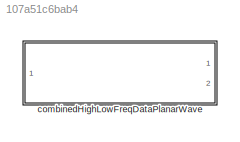
MODEL slx_107a51c6bab4
KIND library
CONFIG AbsTol = auto
CONFIG EnableMultiTasking = off
CONFIG FixedStep = auto
CONFIG MaxStep = auto
CONFIG MinStep = auto
CONFIG RelTol = 1e-3
CONFIG SampleTimeConstraint = Unconstrained
CONFIG Solver = VariableStepAuto
CONFIG SolverName = VariableStepAuto
CONFIG StartTime = 0.0
CONFIG StopTime = 10.0
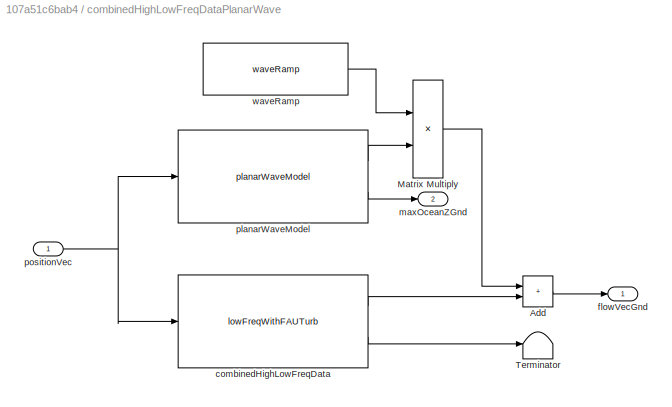
BLOCK [SubSystem] combinedHighLowFreqDataPlanarWave
  Ports = [1, 2]
  RequestExecContextInheritance = off
BLOCK [Sum] combinedHighLowFreqDataPlanarWave/Add
  IconShape = rectangular
  Ports = [2, 1]
BLOCK [Product] combinedHighLowFreqDataPlanarWave/Matrix Multiply
  Ports = [2, 1]
BLOCK [Terminator] combinedHighLowFreqDataPlanarWave/Terminator
BLOCK [Reference] combinedHighLowFreqDataPlanarWave/combinedHighLowFreqData  REF=lowFreqWithFAUTurb_cl/lowFreqWithFAUTurb
  Ports = [1, 2]
  SourceBlock = lowFreqWithFAUTurb_cl/lowFreqWithFAUTurb
  SourceType = SubSystem
BLOCK [Outport] combinedHighLowFreqDataPlanarWave/flowVecGnd
  VectorParamsAs1DForOutWhenUnconnected = off
BLOCK [Outport] combinedHighLowFreqDataPlanarWave/maxOceanZGnd
  Port = 2
  VectorParamsAs1DForOutWhenUnconnected = off
BLOCK [Reference] combinedHighLowFreqDataPlanarWave/planarWaveModel  REF=planarWaveModel_ul/planarWaveModel
  Ports = [1, 2]
  SourceBlock = planarWaveModel_ul/planarWaveModel
  SourceType = SubSystem
BLOCK [Inport] combinedHighLowFreqDataPlanarWave/positionVec
BLOCK [Reference] combinedHighLowFreqDataPlanarWave/waveRamp  REF=constXYZT_PlanarWave_cl/constXYZT_PlanarWave/waveRamp
  Ports = [0, 1]
  SourceBlock = constXYZT_PlanarWave_cl/constXYZT_PlanarWave/waveRamp
  SourceType = SubSystem
LINE combinedHighLowFreqDataPlanarWave/Add:1 -> combinedHighLowFreqDataPlanarWave/flowVecGnd:1
LINE combinedHighLowFreqDataPlanarWave/Matrix Multiply:1 -> combinedHighLowFreqDataPlanarWave/Add:1
LINE combinedHighLowFreqDataPlanarWave/combinedHighLowFreqData:1 -> combinedHighLowFreqDataPlanarWave/Add:2
LINE combinedHighLowFreqDataPlanarWave/combinedHighLowFreqData:2 -> combinedHighLowFreqDataPlanarWave/Terminator:1
LINE combinedHighLowFreqDataPlanarWave/planarWaveModel:1 -> combinedHighLowFreqDataPlanarWave/Matrix Multiply:2
LINE combinedHighLowFreqDataPlanarWave/planarWaveModel:2 -> combinedHighLowFreqDataPlanarWave/maxOceanZGnd:1
NET combinedHighLowFreqDataPlanarWave/positionVec:1 -> combinedHighLowFreqDataPlanarWave/combinedHighLowFreqData:1, combinedHighLowFreqDataPlanarWave/planarWaveModel:1
LINE combinedHighLowFreqDataPlanarWave/waveRamp:1 -> combinedHighLowFreqDataPlanarWave/Matrix Multiply:1
note: NET lines group one-source signal fan-out (src -> all destinations, sorted); 1:1 wires keep LINE
